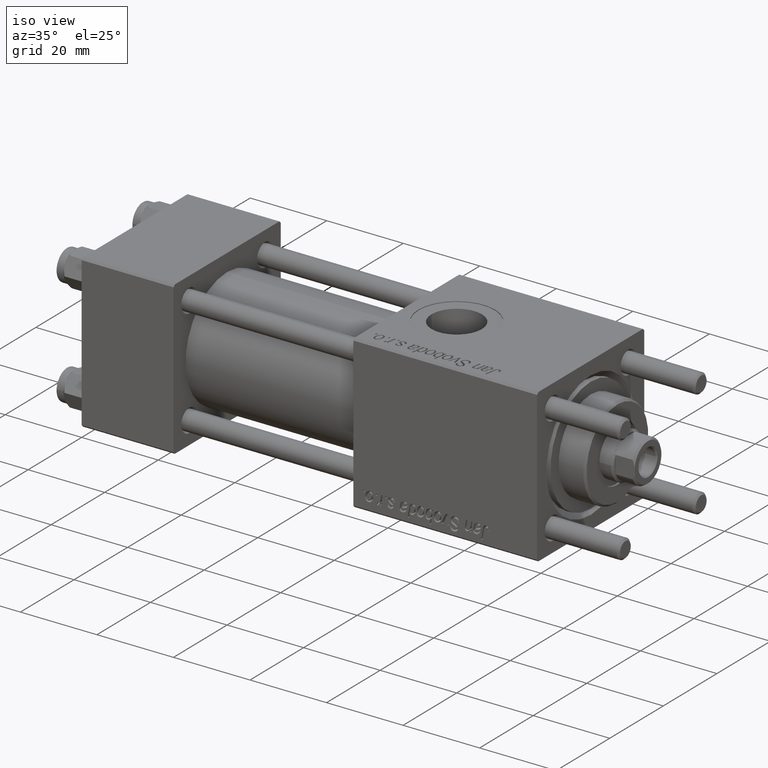
[diagram: clean part render]
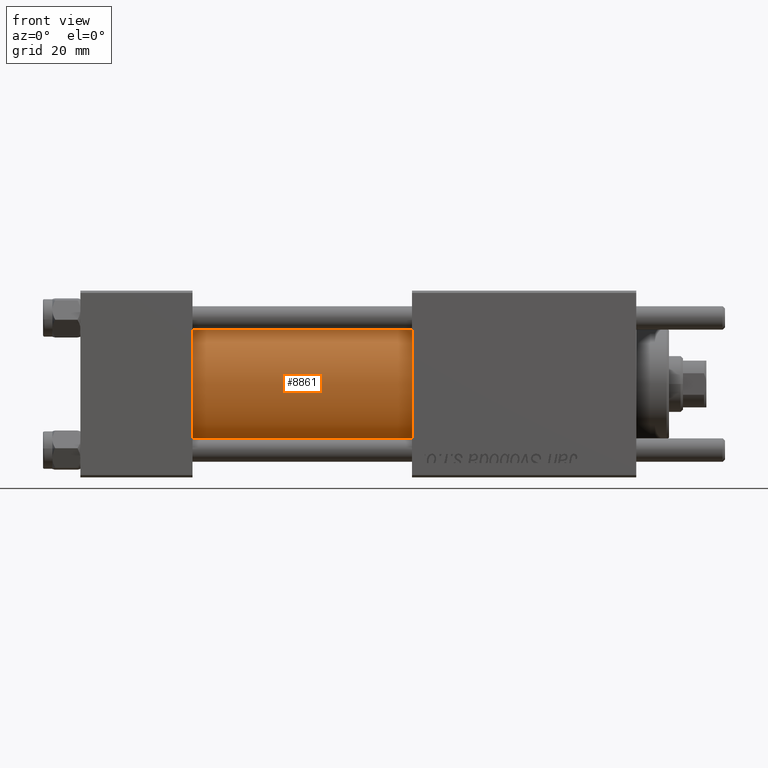
[diagram: tour spotlight — one face highlighted and labeled with its STEP entity id]
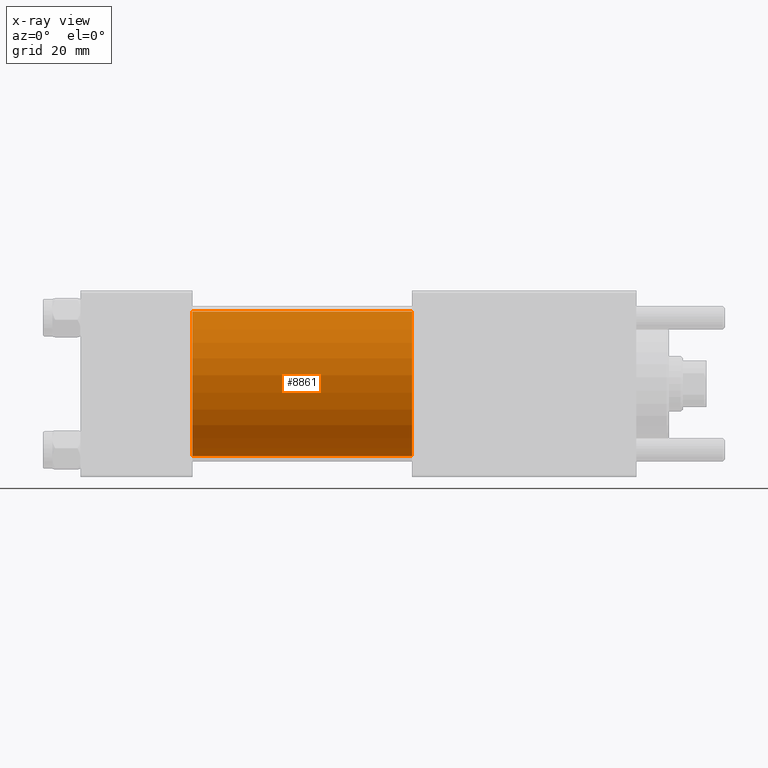
[diagram: x-ray of the same camera — body ghosted, this tour face saturated]
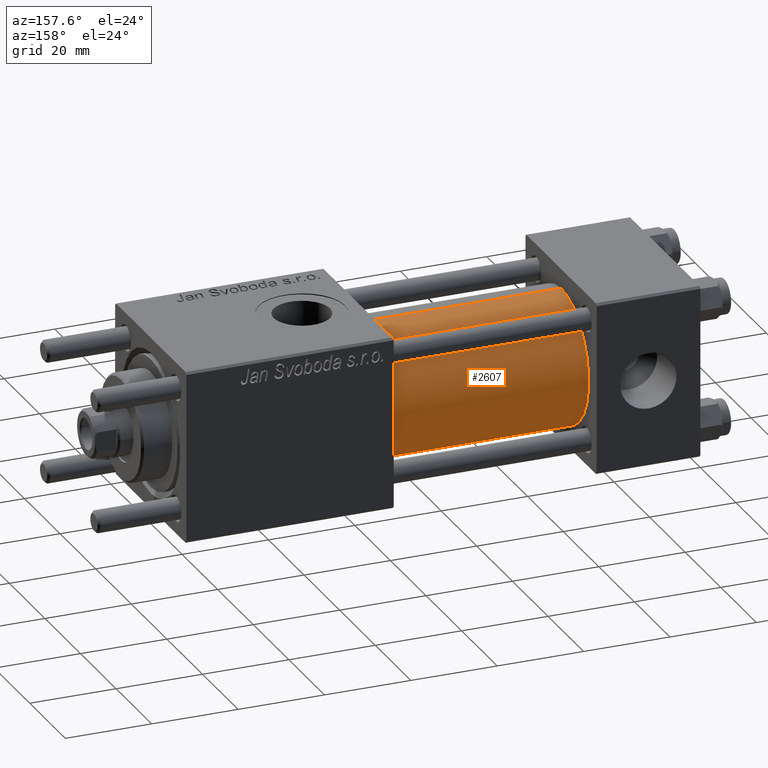
[diagram: tour spotlight — one face highlighted and labeled with its STEP entity id]
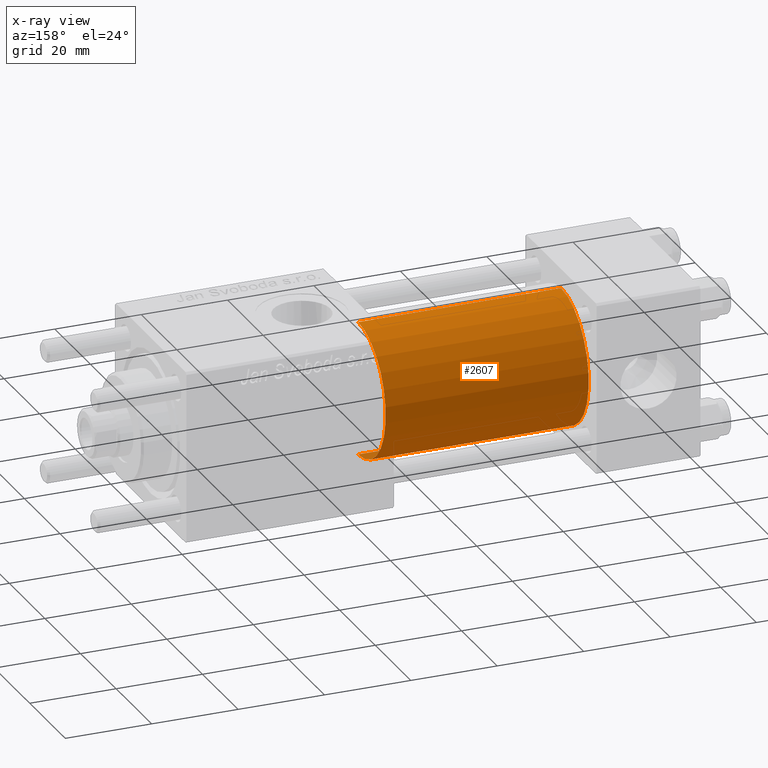
[diagram: x-ray of the same camera — body ghosted, this tour face saturated]
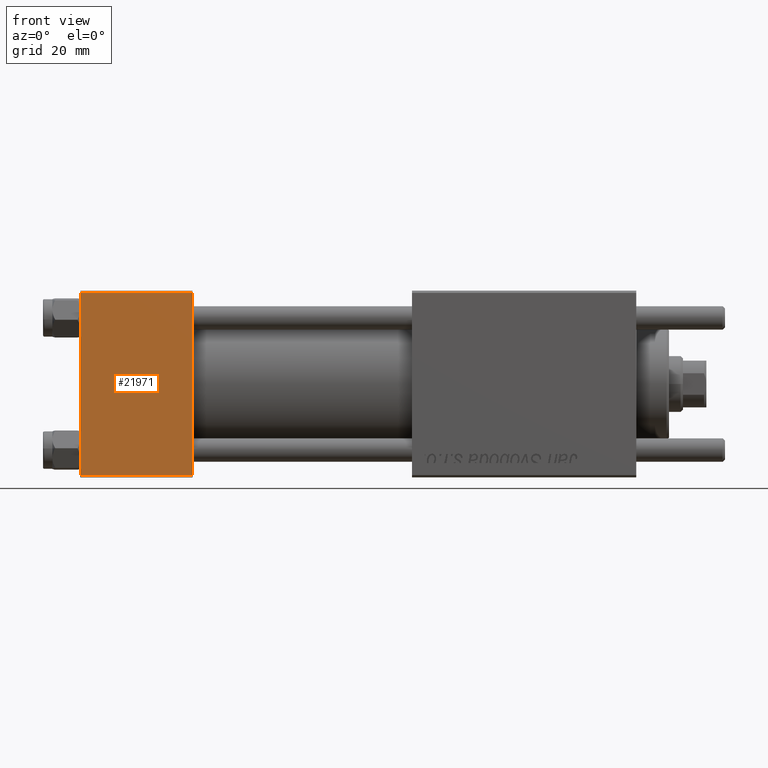
[diagram: tour spotlight — one face highlighted and labeled with its STEP entity id]
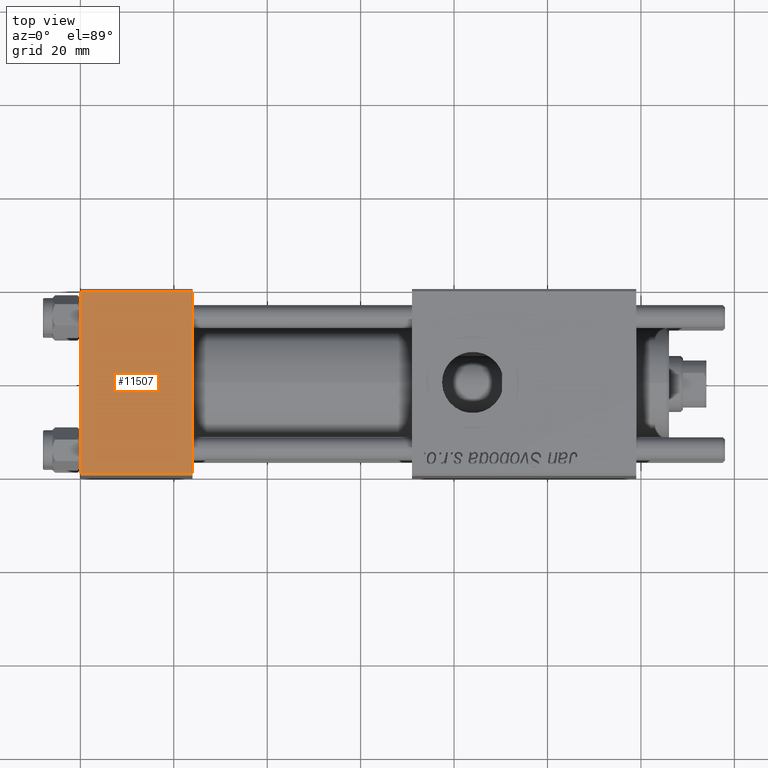
[diagram: tour spotlight — one face highlighted and labeled with its STEP entity id]
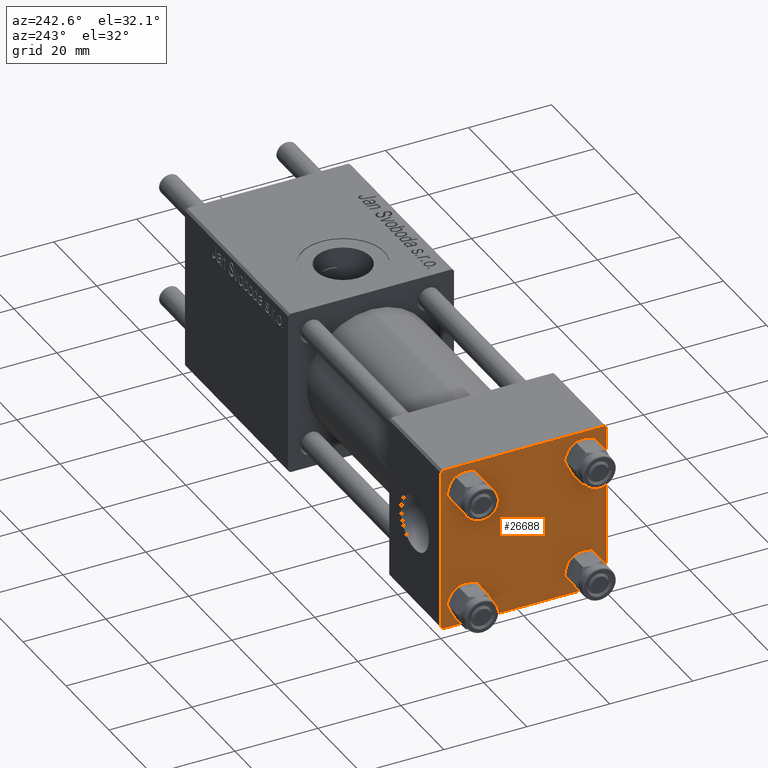
[diagram: tour spotlight — one face highlighted and labeled with its STEP entity id]
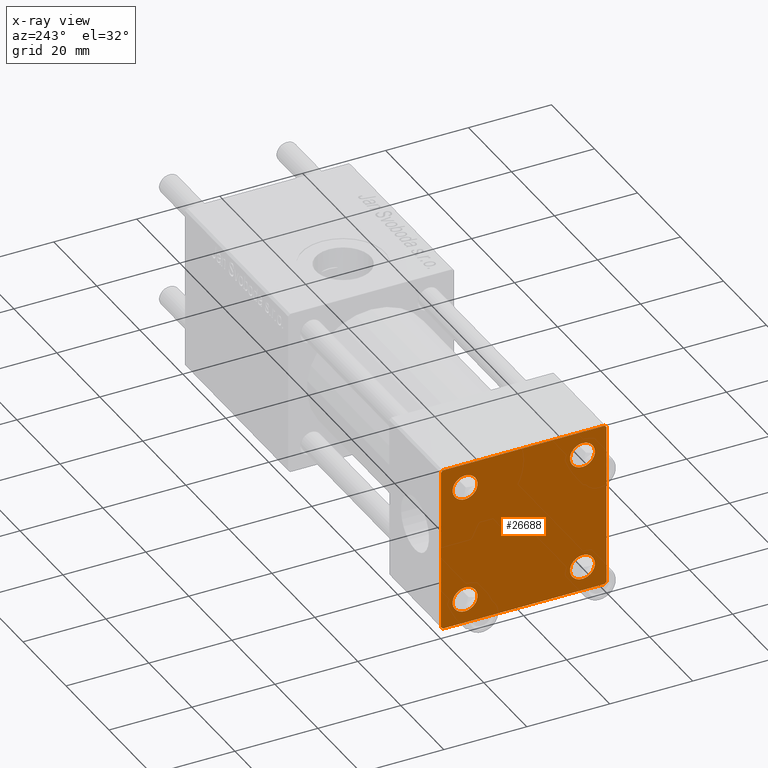
[diagram: x-ray of the same camera — body ghosted, this tour face saturated]
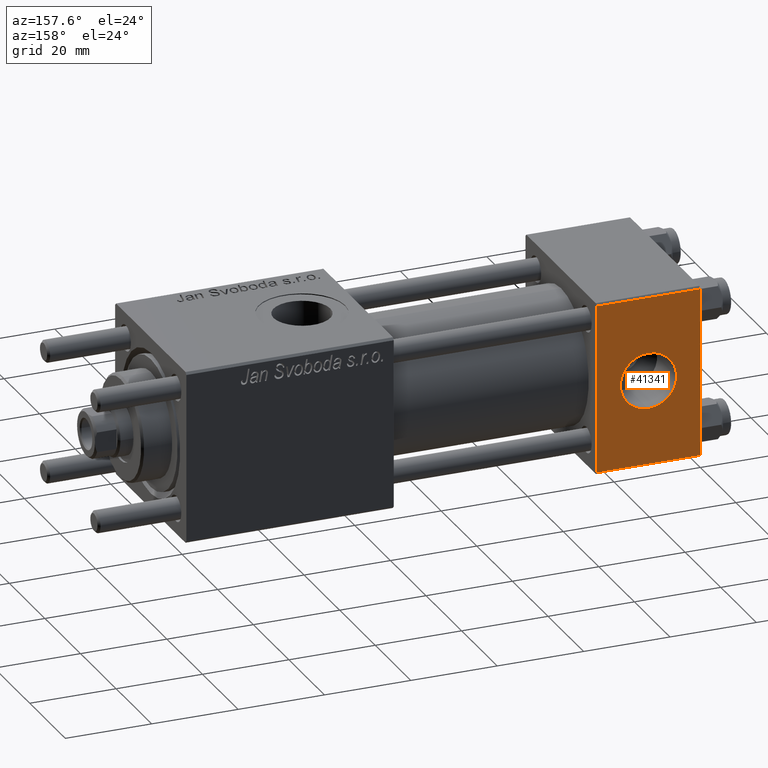
[diagram: tour spotlight — one face highlighted and labeled with its STEP entity id]
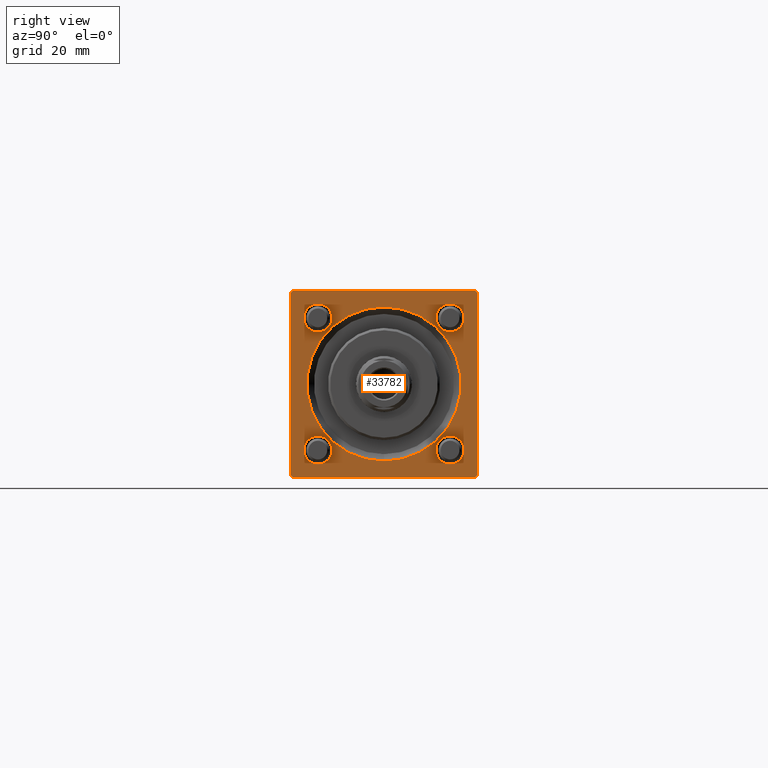
[diagram: tour spotlight — one face highlighted and labeled with its STEP entity id]
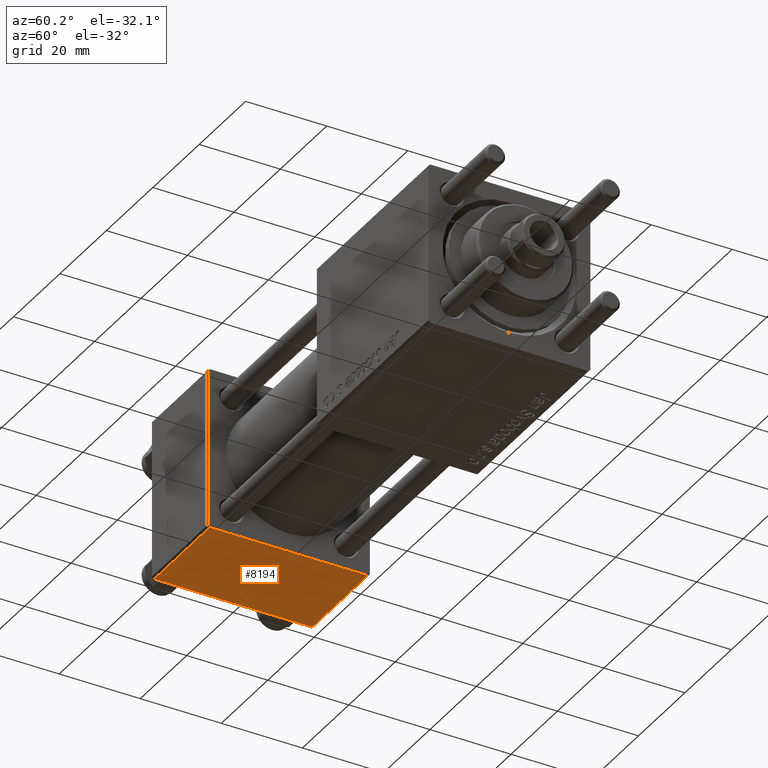
[diagram: tour spotlight — one face highlighted and labeled with its STEP entity id]
A machine part: a face-by-face anatomy tour. The part has 1156 B-rep faces; the first image is the clean iso view, then the 8 largest visible faces are spotlighted one at a time (largest first), each with its STEP entity span.

Face 1 — front view, entity #8861. An x-ray twin of the same camera follows (body ghosted, this face saturated) — the face is partly hidden behind the body. In plain terms, the highlighted cylindrical surface (partial cylindrical patch) has radius 15.5 mm, axis along (-1, -0, -0).
Definition (entity closure, byte-faithful):
#461 = CARTESIAN_POINT ( 'NONE',  ( 71.00000000000001421, -7.038826752868131828E-16, -15.50000000000000000 ) ) ;
#2407 = DIRECTION ( 'NONE',  ( -1.000000000000000000, -0.000000000000000000, -0.000000000000000000 ) ) ;
#4283 = CARTESIAN_POINT ( 'NONE',  ( 71.00000000000001421, -2.602085213965210642E-15, 15.50000000000000000 ) ) ;
#6397 = CYLINDRICAL_SURFACE ( 'NONE', #38442, 15.50000000000000000 ) ;
#6959 = DIRECTION ( 'NONE',  ( 0.000000000000000000, 0.000000000000000000, 1.000000000000000000 ) ) ;
#7231 = DIRECTION ( 'NONE',  ( -1.000000000000000000, -0.000000000000000000, -0.000000000000000000 ) ) ;
#8861 = ADVANCED_FACE ( 'NONE', ( #33066 ), #6397, .T. ) ;
#12022 = ORIENTED_EDGE ( 'NONE', *, *, #26585, .T. ) ;
#15592 = CIRCLE ( 'NONE', #26537, 15.50000000000000000 ) ;
#17501 = DIRECTION ( 'NONE',  ( 0.000000000000000000, 0.000000000000000000, -1.000000000000000000 ) ) ;
#18921 = ORIENTED_EDGE ( 'NONE', *, *, #39131, .F. ) ;
#19982 = CARTESIAN_POINT ( 'NONE',  ( 24.00000000000000000, -7.038826752868131828E-16, -15.50000000000000000 ) ) ;
#23356 = LINE ( 'NONE', #46329, #30569 ) ;
#25511 = CARTESIAN_POINT ( 'NONE',  ( 71.00000000000001421, -2.602085213965210642E-15, 0.000000000000000000 ) ) ;
#26506 = LINE ( 'NONE', #31395, #55068 ) ;
#26537 = AXIS2_PLACEMENT_3D ( 'NONE', #38595, #39165, #42915 ) ;
#26585 = EDGE_CURVE ( 'NONE', #38244, #30032, #23356, .T. ) ;
#30032 = VERTEX_POINT ( 'NONE', #44324 ) ;
#30569 = VECTOR ( 'NONE', #2407, 1000.000000000000000 ) ;
#31395 = CARTESIAN_POINT ( 'NONE',  ( 71.00000000000001421, -7.038826752868131828E-16, -15.50000000000000000 ) ) ;
#33066 = FACE_OUTER_BOUND ( 'NONE', #52096, .T. ) ;
#33619 = CARTESIAN_POINT ( 'NONE',  ( 71.00000000000001421, -2.602085213965210642E-15, 0.000000000000000000 ) ) ;
#36275 = DIRECTION ( 'NONE',  ( -1.000000000000000000, -0.000000000000000000, -0.000000000000000000 ) ) ;
#38244 = VERTEX_POINT ( 'NONE', #4283 ) ;
#38442 = AXIS2_PLACEMENT_3D ( 'NONE', #33619, #7231, #6959 ) ;
#38595 = CARTESIAN_POINT ( 'NONE',  ( 24.00000000000000000, -2.602085213965210642E-15, 0.000000000000000000 ) ) ;
#39131 = EDGE_CURVE ( 'NONE', #38244, #41174, #51892, .T. ) ;
#39165 = DIRECTION ( 'NONE',  ( 1.000000000000000000, 0.000000000000000000, 0.000000000000000000 ) ) ;
#39291 = DIRECTION ( 'NONE',  ( 1.000000000000000000, 0.000000000000000000, 0.000000000000000000 ) ) ;
#41174 = VERTEX_POINT ( 'NONE', #461 ) ;
#42915 = DIRECTION ( 'NONE',  ( 0.000000000000000000, 0.000000000000000000, 1.000000000000000000 ) ) ;
#44324 = CARTESIAN_POINT ( 'NONE',  ( 24.00000000000000000, -2.602085213965210642E-15, 15.50000000000000000 ) ) ;
#44587 = AXIS2_PLACEMENT_3D ( 'NONE', #25511, #39291, #17501 ) ;
#46329 = CARTESIAN_POINT ( 'NONE',  ( 71.00000000000001421, -2.602085213965210642E-15, 15.50000000000000000 ) ) ;
#48857 = EDGE_CURVE ( 'NONE', #30032, #51841, #15592, .T. ) ;
#51841 = VERTEX_POINT ( 'NONE', #19982 ) ;
#51892 = CIRCLE ( 'NONE', #44587, 15.50000000000000000 ) ;
#52096 = EDGE_LOOP ( 'NONE', ( #56246, #18921, #12022, #52205 ) ) ;
#52205 = ORIENTED_EDGE ( 'NONE', *, *, #48857, .T. ) ;
#55068 = VECTOR ( 'NONE', #36275, 1000.000000000000000 ) ;
#55980 = EDGE_CURVE ( 'NONE', #41174, #51841, #26506, .T. ) ;
#56246 = ORIENTED_EDGE ( 'NONE', *, *, #55980, .F. ) ;

Face 2 — auxiliary view, entity #2607. An x-ray twin of the same camera follows (body ghosted, this face saturated) — the face is partly hidden behind the body. In plain terms, the highlighted cylindrical surface (partial cylindrical patch) has radius 15.5 mm, axis along (-1, -0, -0).
Definition (entity closure, byte-faithful):
#461 = CARTESIAN_POINT ( 'NONE',  ( 71.00000000000001421, -7.038826752868131828E-16, -15.50000000000000000 ) ) ;
#2221 = AXIS2_PLACEMENT_3D ( 'NONE', #25719, #7680, #38924 ) ;
#2407 = DIRECTION ( 'NONE',  ( -1.000000000000000000, -0.000000000000000000, -0.000000000000000000 ) ) ;
#2607 = ADVANCED_FACE ( 'NONE', ( #44604 ), #26776, .T. ) ;
#2902 = DIRECTION ( 'NONE',  ( 0.000000000000000000, 0.000000000000000000, -1.000000000000000000 ) ) ;
#4283 = CARTESIAN_POINT ( 'NONE',  ( 71.00000000000001421, -2.602085213965210642E-15, 15.50000000000000000 ) ) ;
#5266 = CARTESIAN_POINT ( 'NONE',  ( 71.00000000000001421, -2.602085213965210642E-15, 0.000000000000000000 ) ) ;
#7680 = DIRECTION ( 'NONE',  ( 1.000000000000000000, 0.000000000000000000, 0.000000000000000000 ) ) ;
#11199 = AXIS2_PLACEMENT_3D ( 'NONE', #33037, #50562, #2902 ) ;
#15474 = ORIENTED_EDGE ( 'NONE', *, *, #27718, .T. ) ;
#18066 = AXIS2_PLACEMENT_3D ( 'NONE', #5266, #48910, #39698 ) ;
#19982 = CARTESIAN_POINT ( 'NONE',  ( 24.00000000000000000, -7.038826752868131828E-16, -15.50000000000000000 ) ) ;
#20801 = EDGE_CURVE ( 'NONE', #41174, #38244, #46929, .T. ) ;
#21449 = CIRCLE ( 'NONE', #2221, 15.50000000000000000 ) ;
#23356 = LINE ( 'NONE', #46329, #30569 ) ;
#25719 = CARTESIAN_POINT ( 'NONE',  ( 24.00000000000000000, -2.602085213965210642E-15, 0.000000000000000000 ) ) ;
#26506 = LINE ( 'NONE', #31395, #55068 ) ;
#26585 = EDGE_CURVE ( 'NONE', #38244, #30032, #23356, .T. ) ;
#26776 = CYLINDRICAL_SURFACE ( 'NONE', #18066, 15.50000000000000000 ) ;
#27718 = EDGE_CURVE ( 'NONE', #51841, #30032, #21449, .T. ) ;
#30032 = VERTEX_POINT ( 'NONE', #44324 ) ;
#30569 = VECTOR ( 'NONE', #2407, 1000.000000000000000 ) ;
#31395 = CARTESIAN_POINT ( 'NONE',  ( 71.00000000000001421, -7.038826752868131828E-16, -15.50000000000000000 ) ) ;
#33037 = CARTESIAN_POINT ( 'NONE',  ( 71.00000000000001421, -2.602085213965210642E-15, 0.000000000000000000 ) ) ;
#36275 = DIRECTION ( 'NONE',  ( -1.000000000000000000, -0.000000000000000000, -0.000000000000000000 ) ) ;
#38244 = VERTEX_POINT ( 'NONE', #4283 ) ;
#38924 = DIRECTION ( 'NONE',  ( 0.000000000000000000, 0.000000000000000000, 1.000000000000000000 ) ) ;
#39698 = DIRECTION ( 'NONE',  ( 0.000000000000000000, 0.000000000000000000, 1.000000000000000000 ) ) ;
#39846 = ORIENTED_EDGE ( 'NONE', *, *, #26585, .F. ) ;
#41174 = VERTEX_POINT ( 'NONE', #461 ) ;
#44324 = CARTESIAN_POINT ( 'NONE',  ( 24.00000000000000000, -2.602085213965210642E-15, 15.50000000000000000 ) ) ;
#44577 = ORIENTED_EDGE ( 'NONE', *, *, #55980, .T. ) ;
#44604 = FACE_OUTER_BOUND ( 'NONE', #56782, .T. ) ;
#46329 = CARTESIAN_POINT ( 'NONE',  ( 71.00000000000001421, -2.602085213965210642E-15, 15.50000000000000000 ) ) ;
#46929 = CIRCLE ( 'NONE', #11199, 15.50000000000000000 ) ;
#47116 = ORIENTED_EDGE ( 'NONE', *, *, #20801, .F. ) ;
#48910 = DIRECTION ( 'NONE',  ( -1.000000000000000000, -0.000000000000000000, -0.000000000000000000 ) ) ;
#50562 = DIRECTION ( 'NONE',  ( 1.000000000000000000, 0.000000000000000000, 0.000000000000000000 ) ) ;
#51841 = VERTEX_POINT ( 'NONE', #19982 ) ;
#55068 = VECTOR ( 'NONE', #36275, 1000.000000000000000 ) ;
#55980 = EDGE_CURVE ( 'NONE', #41174, #51841, #26506, .T. ) ;
#56782 = EDGE_LOOP ( 'NONE', ( #47116, #44577, #15474, #39846 ) ) ;

Face 3 — front view, entity #21971. In plain terms, the highlighted planar face has unit normal (0, 1, 0).
Definition (entity closure, byte-faithful):
#132 = VECTOR ( 'NONE', #16307, 1000.000000000000000 ) ;
#3467 = DIRECTION ( 'NONE',  ( -1.000000000000000000, 0.000000000000000000, 0.000000000000000000 ) ) ;
#5698 = AXIS2_PLACEMENT_3D ( 'NONE', #13399, #26855, #56702 ) ;
#6400 = EDGE_CURVE ( 'NONE', #31837, #10886, #40839, .T. ) ;
#10119 = CARTESIAN_POINT ( 'NONE',  ( 24.00000000000000000, -20.00000000000000355, 19.99999999999998934 ) ) ;
#10714 = CARTESIAN_POINT ( 'NONE',  ( 0.000000000000000000, -20.00000000000000355, 19.99999999999998934 ) ) ;
#10886 = VERTEX_POINT ( 'NONE', #41429 ) ;
#11473 = VECTOR ( 'NONE', #51101, 1000.000000000000000 ) ;
#13399 = CARTESIAN_POINT ( 'NONE',  ( 24.00000000000000000, -20.00000000000000355, 19.99999999999998934 ) ) ;
#15880 = CARTESIAN_POINT ( 'NONE',  ( 24.00000000000000000, -20.00000000000000355, 19.49999999999998224 ) ) ;
#16307 = DIRECTION ( 'NONE',  ( 0.000000000000000000, 8.673617379884036705E-17, -1.000000000000000000 ) ) ;
#18522 = VERTEX_POINT ( 'NONE', #15880 ) ;
#19843 = EDGE_CURVE ( 'NONE', #18522, #49567, #49430, .T. ) ;
#21971 = ADVANCED_FACE ( 'NONE', ( #39192 ), #50033, .F. ) ;
#26149 = CARTESIAN_POINT ( 'NONE',  ( 0.000000000000000000, -20.00000000000000355, 19.49999999999998224 ) ) ;
#26855 = DIRECTION ( 'NONE',  ( -0.000000000000000000, 1.000000000000000000, 8.673617379884036705E-17 ) ) ;
#27906 = DIRECTION ( 'NONE',  ( 0.000000000000000000, 8.673617379884036705E-17, -1.000000000000000000 ) ) ;
#29567 = LINE ( 'NONE', #47117, #40008 ) ;
#31837 = VERTEX_POINT ( 'NONE', #26149 ) ;
#35799 = ORIENTED_EDGE ( 'NONE', *, *, #41669, .T. ) ;
#35919 = EDGE_CURVE ( 'NONE', #10886, #49567, #46253, .T. ) ;
#36999 = ORIENTED_EDGE ( 'NONE', *, *, #35919, .T. ) ;
#37482 = VECTOR ( 'NONE', #27906, 1000.000000000000000 ) ;
#39192 = FACE_OUTER_BOUND ( 'NONE', #41380, .T. ) ;
#40008 = VECTOR ( 'NONE', #3467, 1000.000000000000000 ) ;
#40839 = LINE ( 'NONE', #10714, #37482 ) ;
#41380 = EDGE_LOOP ( 'NONE', ( #46026, #36999, #48671, #35799 ) ) ;
#41429 = CARTESIAN_POINT ( 'NONE',  ( 0.000000000000000000, -20.00000000000000000, -19.49999999999999645 ) ) ;
#41669 = EDGE_CURVE ( 'NONE', #18522, #31837, #29567, .T. ) ;
#46026 = ORIENTED_EDGE ( 'NONE', *, *, #6400, .T. ) ;
#46253 = LINE ( 'NONE', #50829, #11473 ) ;
#47117 = CARTESIAN_POINT ( 'NONE',  ( 24.00000000000000000, -20.00000000000000355, 19.49999999999998224 ) ) ;
#48671 = ORIENTED_EDGE ( 'NONE', *, *, #19843, .F. ) ;
#49430 = LINE ( 'NONE', #10119, #132 ) ;
#49567 = VERTEX_POINT ( 'NONE', #53036 ) ;
#50033 = PLANE ( 'NONE',  #5698 ) ;
#50829 = CARTESIAN_POINT ( 'NONE',  ( 24.00000000000000000, -20.00000000000000000, -19.49999999999999645 ) ) ;
#51101 = DIRECTION ( 'NONE',  ( 1.000000000000000000, 0.000000000000000000, 0.000000000000000000 ) ) ;
#53036 = CARTESIAN_POINT ( 'NONE',  ( 24.00000000000000000, -20.00000000000000000, -19.49999999999999645 ) ) ;
#56702 = DIRECTION ( 'NONE',  ( 0.000000000000000000, -8.673617379884036705E-17, 1.000000000000000000 ) ) ;

Face 4 — top view, entity #11507. In plain terms, the highlighted planar face has unit normal (0, 0, -1).
Definition (entity closure, byte-faithful):
#1237 = DIRECTION ( 'NONE',  ( 0.000000000000000000, 1.000000000000000000, 2.602085213965210149E-16 ) ) ;
#6794 = ORIENTED_EDGE ( 'NONE', *, *, #18170, .T. ) ;
#8576 = CARTESIAN_POINT ( 'NONE',  ( 0.000000000000000000, -19.49999999999999289, 19.99999999999998934 ) ) ;
#10105 = AXIS2_PLACEMENT_3D ( 'NONE', #10419, #50288, #1237 ) ;
#10419 = CARTESIAN_POINT ( 'NONE',  ( 24.00000000000000000, 20.00000000000000000, 20.00000000000000000 ) ) ;
#11507 = ADVANCED_FACE ( 'NONE', ( #49731 ), #19291, .F. ) ;
#16745 = EDGE_CURVE ( 'NONE', #27963, #32780, #31584, .T. ) ;
#18170 = EDGE_CURVE ( 'NONE', #24691, #27963, #19111, .T. ) ;
#19111 = LINE ( 'NONE', #31173, #49584 ) ;
#19291 = PLANE ( 'NONE',  #10105 ) ;
#20536 = EDGE_LOOP ( 'NONE', ( #38397, #55221, #32028, #6794 ) ) ;
#22103 = VERTEX_POINT ( 'NONE', #55718 ) ;
#24601 = VECTOR ( 'NONE', #47817, 1000.000000000000000 ) ;
#24691 = VERTEX_POINT ( 'NONE', #39060 ) ;
#27237 = CARTESIAN_POINT ( 'NONE',  ( 24.00000000000000000, 20.00000000000000000, 20.00000000000000000 ) ) ;
#27963 = VERTEX_POINT ( 'NONE', #50692 ) ;
#28075 = LINE ( 'NONE', #27237, #33873 ) ;
#31173 = CARTESIAN_POINT ( 'NONE',  ( 0.000000000000000000, 19.50000000000000000, 20.00000000000000000 ) ) ;
#31584 = LINE ( 'NONE', #49393, #38522 ) ;
#32028 = ORIENTED_EDGE ( 'NONE', *, *, #48440, .F. ) ;
#32780 = VERTEX_POINT ( 'NONE', #8576 ) ;
#33873 = VECTOR ( 'NONE', #45061, 1000.000000000000000 ) ;
#34593 = CARTESIAN_POINT ( 'NONE',  ( 24.00000000000000000, -19.49999999999999289, 19.99999999999998934 ) ) ;
#38397 = ORIENTED_EDGE ( 'NONE', *, *, #16745, .T. ) ;
#38522 = VECTOR ( 'NONE', #49122, 1000.000000000000000 ) ;
#39060 = CARTESIAN_POINT ( 'NONE',  ( 24.00000000000000000, 19.50000000000000000, 20.00000000000000000 ) ) ;
#45061 = DIRECTION ( 'NONE',  ( 0.000000000000000000, -1.000000000000000000, -2.602085213965210149E-16 ) ) ;
#47817 = DIRECTION ( 'NONE',  ( 1.000000000000000000, 0.000000000000000000, 0.000000000000000000 ) ) ;
#48440 = EDGE_CURVE ( 'NONE', #24691, #22103, #28075, .T. ) ;
#49122 = DIRECTION ( 'NONE',  ( 0.000000000000000000, -1.000000000000000000, -2.602085213965210149E-16 ) ) ;
#49393 = CARTESIAN_POINT ( 'NONE',  ( 0.000000000000000000, 20.00000000000000000, 20.00000000000000000 ) ) ;
#49584 = VECTOR ( 'NONE', #49837, 1000.000000000000000 ) ;
#49731 = FACE_OUTER_BOUND ( 'NONE', #20536, .T. ) ;
#49762 = EDGE_CURVE ( 'NONE', #32780, #22103, #52399, .T. ) ;
#49837 = DIRECTION ( 'NONE',  ( -1.000000000000000000, 0.000000000000000000, 0.000000000000000000 ) ) ;
#50288 = DIRECTION ( 'NONE',  ( 0.000000000000000000, 2.602085213965210149E-16, -1.000000000000000000 ) ) ;
#50692 = CARTESIAN_POINT ( 'NONE',  ( 0.000000000000000000, 19.50000000000000000, 20.00000000000000000 ) ) ;
#52399 = LINE ( 'NONE', #34593, #24601 ) ;
#55221 = ORIENTED_EDGE ( 'NONE', *, *, #49762, .T. ) ;
#55718 = CARTESIAN_POINT ( 'NONE',  ( 24.00000000000000000, -19.49999999999999289, 19.99999999999998934 ) ) ;

Face 5 — auxiliary view, entity #26688. An x-ray twin of the same camera follows (body ghosted, this face saturated) — the face is partly hidden behind the body. In plain terms, the highlighted planar face has unit normal (-1, 0, 0).
Definition (entity closure, byte-faithful):
#355 = CARTESIAN_POINT ( 'NONE',  ( 0.000000000000000000, 14.14999999999999858, -11.15000000000001812 ) ) ;
#635 = EDGE_CURVE ( 'NONE', #31837, #32780, #6785, .T. ) ;
#1056 = CARTESIAN_POINT ( 'NONE',  ( -0.000000000000000000, 19.75000000000013500, 19.74999999999986144 ) ) ;
#1214 = DIRECTION ( 'NONE',  ( 0.000000000000000000, 0.000000000000000000, 1.000000000000000000 ) ) ;
#2472 = DIRECTION ( 'NONE',  ( -0.000000000000000000, 0.7071067811865500152, 0.7071067811865451302 ) ) ;
#3984 = CARTESIAN_POINT ( 'NONE',  ( 0.000000000000000000, 20.00000000000000000, -19.50000000000002132 ) ) ;
#4069 = DIRECTION ( 'NONE',  ( -1.000000000000000000, 0.000000000000000000, -0.000000000000000000 ) ) ;
#4277 = VECTOR ( 'NONE', #13016, 1000.000000000000000 ) ;
#4379 = CARTESIAN_POINT ( 'NONE',  ( 0.000000000000000000, -14.14999999999999503, 14.15000000000000391 ) ) ;
#4623 = DIRECTION ( 'NONE',  ( 0.000000000000000000, -1.000000000000000000, 1.734723475976807094E-16 ) ) ;
#5155 = AXIS2_PLACEMENT_3D ( 'NONE', #5793, #36764, #1214 ) ;
#5228 = CARTESIAN_POINT ( 'NONE',  ( 0.000000000000000000, 0.000000000000000000, 0.000000000000000000 ) ) ;
#5462 = VECTOR ( 'NONE', #31285, 1000.000000000000000 ) ;
#5656 = CARTESIAN_POINT ( 'NONE',  ( 0.000000000000000000, 14.14999999999999858, 11.15000000000001990 ) ) ;
#5793 = CARTESIAN_POINT ( 'NONE',  ( 0.000000000000000000, -14.14999999999999503, -14.15000000000000391 ) ) ;
#6306 = DIRECTION ( 'NONE',  ( 0.000000000000000000, 0.000000000000000000, 1.000000000000000000 ) ) ;
#6400 = EDGE_CURVE ( 'NONE', #31837, #10886, #40839, .T. ) ;
#6785 = LINE ( 'NONE', #7335, #19686 ) ;
#7335 = CARTESIAN_POINT ( 'NONE',  ( -0.000000000000000000, -19.74999999999992539, 19.75000000000006395 ) ) ;
#7488 = AXIS2_PLACEMENT_3D ( 'NONE', #47450, #52890, #26753 ) ;
#7794 = VERTEX_POINT ( 'NONE', #30666 ) ;
#7833 = FACE_BOUND ( 'NONE', #31700, .T. ) ;
#8340 = EDGE_LOOP ( 'NONE', ( #53701, #8990 ) ) ;
#8576 = CARTESIAN_POINT ( 'NONE',  ( 0.000000000000000000, -19.49999999999999289, 19.99999999999998934 ) ) ;
#8990 = ORIENTED_EDGE ( 'NONE', *, *, #38994, .T. ) ;
#9542 = CARTESIAN_POINT ( 'NONE',  ( 0.000000000000000000, 14.14999999999999858, -17.14999999999998437 ) ) ;
#10714 = CARTESIAN_POINT ( 'NONE',  ( 0.000000000000000000, -20.00000000000000355, 19.99999999999998934 ) ) ;
#10886 = VERTEX_POINT ( 'NONE', #41429 ) ;
#11116 = EDGE_LOOP ( 'NONE', ( #14234, #33122 ) ) ;
#11951 = CARTESIAN_POINT ( 'NONE',  ( 0.000000000000000000, -14.14999999999999503, 14.15000000000000391 ) ) ;
#12939 = CARTESIAN_POINT ( 'NONE',  ( -0.000000000000000000, 19.74999999999986855, -19.75000000000014211 ) ) ;
#13016 = DIRECTION ( 'NONE',  ( 0.000000000000000000, 0.000000000000000000, -1.000000000000000000 ) ) ;
#13639 = AXIS2_PLACEMENT_3D ( 'NONE', #4379, #40454, #6306 ) ;
#14234 = ORIENTED_EDGE ( 'NONE', *, *, #42067, .T. ) ;
#16745 = EDGE_CURVE ( 'NONE', #27963, #32780, #31584, .T. ) ;
#16868 = AXIS2_PLACEMENT_3D ( 'NONE', #36838, #27929, #37673 ) ;
#16948 = ORIENTED_EDGE ( 'NONE', *, *, #6400, .F. ) ;
#17569 = EDGE_LOOP ( 'NONE', ( #54712, #20148 ) ) ;
#17883 = VERTEX_POINT ( 'NONE', #3984 ) ;
#18954 = CARTESIAN_POINT ( 'NONE',  ( 0.000000000000000000, -14.14999999999999503, 11.15000000000002345 ) ) ;
#19686 = VECTOR ( 'NONE', #2472, 1000.000000000000114 ) ;
#19934 = DIRECTION ( 'NONE',  ( 0.000000000000000000, 0.000000000000000000, 1.000000000000000000 ) ) ;
#20148 = ORIENTED_EDGE ( 'NONE', *, *, #20576, .T. ) ;
#20576 = EDGE_CURVE ( 'NONE', #39435, #33728, #55189, .T. ) ;
#21017 = FACE_BOUND ( 'NONE', #17569, .T. ) ;
#21330 = VERTEX_POINT ( 'NONE', #45783 ) ;
#21603 = ORIENTED_EDGE ( 'NONE', *, *, #52825, .T. ) ;
#22683 = LINE ( 'NONE', #12939, #5462 ) ;
#22728 = EDGE_CURVE ( 'NONE', #31057, #31082, #47897, .T. ) ;
#24200 = CIRCLE ( 'NONE', #16868, 2.999999999999983569 ) ;
#24570 = VECTOR ( 'NONE', #44390, 1000.000000000000000 ) ;
#25296 = CARTESIAN_POINT ( 'NONE',  ( 0.000000000000000000, 19.50000000000000711, -20.00000000000000711 ) ) ;
#25307 = FACE_BOUND ( 'NONE', #8340, .T. ) ;
#25498 = AXIS2_PLACEMENT_3D ( 'NONE', #27964, #54384, #41180 ) ;
#25611 = CARTESIAN_POINT ( 'NONE',  ( 0.000000000000000000, 20.00000000000000000, 20.00000000000000000 ) ) ;
#26149 = CARTESIAN_POINT ( 'NONE',  ( 0.000000000000000000, -20.00000000000000355, 19.49999999999998224 ) ) ;
#26412 = LINE ( 'NONE', #31307, #33794 ) ;
#26688 = ADVANCED_FACE ( 'NONE', ( #7833, #25307, #42832, #21017, #38509 ), #53445, .T. ) ;
#26753 = DIRECTION ( 'NONE',  ( 0.000000000000000000, 0.000000000000000000, 1.000000000000000000 ) ) ;
#26849 = LINE ( 'NONE', #31154, #24570 ) ;
#26900 = AXIS2_PLACEMENT_3D ( 'NONE', #5228, #4069, #48286 ) ;
#27450 = VERTEX_POINT ( 'NONE', #25296 ) ;
#27630 = ORIENTED_EDGE ( 'NONE', *, *, #635, .T. ) ;
#27903 = VERTEX_POINT ( 'NONE', #40931 ) ;
#27906 = DIRECTION ( 'NONE',  ( 0.000000000000000000, 8.673617379884036705E-17, -1.000000000000000000 ) ) ;
#27929 = DIRECTION ( 'NONE',  ( 1.000000000000000000, 0.000000000000000000, 0.000000000000000000 ) ) ;
#27963 = VERTEX_POINT ( 'NONE', #50692 ) ;
#27964 = CARTESIAN_POINT ( 'NONE',  ( 0.000000000000000000, -14.14999999999999503, -14.15000000000000391 ) ) ;
#28178 = EDGE_CURVE ( 'NONE', #33728, #39435, #24200, .T. ) ;
#30007 = CARTESIAN_POINT ( 'NONE',  ( 0.000000000000000000, 14.14999999999999858, 17.14999999999998437 ) ) ;
#30260 = ORIENTED_EDGE ( 'NONE', *, *, #56037, .T. ) ;
#30666 = CARTESIAN_POINT ( 'NONE',  ( 0.000000000000000000, -14.14999999999999503, -11.15000000000000036 ) ) ;
#31057 = VERTEX_POINT ( 'NONE', #9542 ) ;
#31069 = ORIENTED_EDGE ( 'NONE', *, *, #49244, .T. ) ;
#31082 = VERTEX_POINT ( 'NONE', #355 ) ;
#31154 = CARTESIAN_POINT ( 'NONE',  ( 0.000000000000000000, -19.75000000000020961, -19.74999999999979394 ) ) ;
#31171 = CARTESIAN_POINT ( 'NONE',  ( 0.000000000000000000, 14.14999999999999858, -14.15000000000000036 ) ) ;
#31285 = DIRECTION ( 'NONE',  ( -0.000000000000000000, -0.7071067811865524577, -0.7071067811865426878 ) ) ;
#31307 = CARTESIAN_POINT ( 'NONE',  ( 0.000000000000000000, 20.00000000000000000, -20.00000000000000711 ) ) ;
#31584 = LINE ( 'NONE', #49393, #38522 ) ;
#31700 = EDGE_LOOP ( 'NONE', ( #31069, #43923 ) ) ;
#31837 = VERTEX_POINT ( 'NONE', #26149 ) ;
#32568 = ORIENTED_EDGE ( 'NONE', *, *, #41416, .T. ) ;
#32780 = VERTEX_POINT ( 'NONE', #8576 ) ;
#33122 = ORIENTED_EDGE ( 'NONE', *, *, #22728, .T. ) ;
#33347 = VERTEX_POINT ( 'NONE', #18954 ) ;
#33728 = VERTEX_POINT ( 'NONE', #30007 ) ;
#33794 = VECTOR ( 'NONE', #4623, 1000.000000000000000 ) ;
#34617 = AXIS2_PLACEMENT_3D ( 'NONE', #45796, #46922, #19934 ) ;
#34819 = ORIENTED_EDGE ( 'NONE', *, *, #44426, .T. ) ;
#36764 = DIRECTION ( 'NONE',  ( 1.000000000000000000, 0.000000000000000000, 0.000000000000000000 ) ) ;
#36838 = CARTESIAN_POINT ( 'NONE',  ( 0.000000000000000000, 14.14999999999999858, 14.15000000000000036 ) ) ;
#37423 = ORIENTED_EDGE ( 'NONE', *, *, #45000, .T. ) ;
#37482 = VECTOR ( 'NONE', #27906, 1000.000000000000000 ) ;
#37673 = DIRECTION ( 'NONE',  ( 0.000000000000000000, 0.000000000000000000, 1.000000000000000000 ) ) ;
#37711 = CARTESIAN_POINT ( 'NONE',  ( 0.000000000000000000, -19.50000000000000711, -20.00000000000000000 ) ) ;
#38160 = VERTEX_POINT ( 'NONE', #55121 ) ;
#38509 = FACE_OUTER_BOUND ( 'NONE', #48966, .T. ) ;
#38522 = VECTOR ( 'NONE', #49122, 1000.000000000000000 ) ;
#38994 = EDGE_CURVE ( 'NONE', #38160, #7794, #48216, .T. ) ;
#39196 = DIRECTION ( 'NONE',  ( 0.000000000000000000, 0.7071067811865425767, -0.7071067811865525687 ) ) ;
#39435 = VERTEX_POINT ( 'NONE', #5656 ) ;
#40219 = EDGE_CURVE ( 'NONE', #33347, #21330, #47316, .T. ) ;
#40354 = DIRECTION ( 'NONE',  ( 1.000000000000000000, 0.000000000000000000, 0.000000000000000000 ) ) ;
#40454 = DIRECTION ( 'NONE',  ( 1.000000000000000000, 0.000000000000000000, 0.000000000000000000 ) ) ;
#40839 = LINE ( 'NONE', #10714, #37482 ) ;
#40931 = CARTESIAN_POINT ( 'NONE',  ( 0.000000000000000000, 20.00000000000000000, 19.49999999999999289 ) ) ;
#41144 = CIRCLE ( 'NONE', #25498, 3.000000000000004441 ) ;
#41180 = DIRECTION ( 'NONE',  ( 0.000000000000000000, 0.000000000000000000, 1.000000000000000000 ) ) ;
#41416 = EDGE_CURVE ( 'NONE', #27903, #17883, #47462, .T. ) ;
#41429 = CARTESIAN_POINT ( 'NONE',  ( 0.000000000000000000, -20.00000000000000000, -19.49999999999999645 ) ) ;
#42067 = EDGE_CURVE ( 'NONE', #31082, #31057, #48411, .T. ) ;
#42832 = FACE_BOUND ( 'NONE', #11116, .T. ) ;
#42913 = DIRECTION ( 'NONE',  ( 0.000000000000000000, 0.000000000000000000, 1.000000000000000000 ) ) ;
#43860 = VERTEX_POINT ( 'NONE', #37711 ) ;
#43923 = ORIENTED_EDGE ( 'NONE', *, *, #40219, .T. ) ;
#44390 = DIRECTION ( 'NONE',  ( 0.000000000000000000, -0.7071067811865401342, 0.7071067811865549002 ) ) ;
#44426 = EDGE_CURVE ( 'NONE', #43860, #10886, #26849, .T. ) ;
#45000 = EDGE_CURVE ( 'NONE', #27450, #43860, #26412, .T. ) ;
#45783 = CARTESIAN_POINT ( 'NONE',  ( 0.000000000000000000, -14.14999999999999503, 17.14999999999998792 ) ) ;
#45796 = CARTESIAN_POINT ( 'NONE',  ( 0.000000000000000000, 14.14999999999999858, -14.15000000000000036 ) ) ;
#46922 = DIRECTION ( 'NONE',  ( 1.000000000000000000, 0.000000000000000000, 0.000000000000000000 ) ) ;
#47316 = CIRCLE ( 'NONE', #48259, 2.999999999999983569 ) ;
#47450 = CARTESIAN_POINT ( 'NONE',  ( 0.000000000000000000, 14.14999999999999858, 14.15000000000000036 ) ) ;
#47462 = LINE ( 'NONE', #25611, #4277 ) ;
#47897 = CIRCLE ( 'NONE', #56108, 2.999999999999983569 ) ;
#48216 = CIRCLE ( 'NONE', #5155, 3.000000000000004441 ) ;
#48259 = AXIS2_PLACEMENT_3D ( 'NONE', #11951, #56389, #42913 ) ;
#48286 = DIRECTION ( 'NONE',  ( -0.000000000000000000, 0.000000000000000000, 1.000000000000000000 ) ) ;
#48411 = CIRCLE ( 'NONE', #34617, 2.999999999999983569 ) ;
#48966 = EDGE_LOOP ( 'NONE', ( #32568, #21603, #37423, #34819, #16948, #27630, #52586, #30260 ) ) ;
#49122 = DIRECTION ( 'NONE',  ( 0.000000000000000000, -1.000000000000000000, -2.602085213965210149E-16 ) ) ;
#49244 = EDGE_CURVE ( 'NONE', #21330, #33347, #54861, .T. ) ;
#49393 = CARTESIAN_POINT ( 'NONE',  ( 0.000000000000000000, 20.00000000000000000, 20.00000000000000000 ) ) ;
#50007 = EDGE_CURVE ( 'NONE', #7794, #38160, #41144, .T. ) ;
#50491 = VECTOR ( 'NONE', #39196, 999.9999999999998863 ) ;
#50692 = CARTESIAN_POINT ( 'NONE',  ( 0.000000000000000000, 19.50000000000000000, 20.00000000000000000 ) ) ;
#52421 = LINE ( 'NONE', #1056, #50491 ) ;
#52586 = ORIENTED_EDGE ( 'NONE', *, *, #16745, .F. ) ;
#52825 = EDGE_CURVE ( 'NONE', #17883, #27450, #22683, .T. ) ;
#52890 = DIRECTION ( 'NONE',  ( 1.000000000000000000, 0.000000000000000000, 0.000000000000000000 ) ) ;
#53288 = DIRECTION ( 'NONE',  ( 0.000000000000000000, 0.000000000000000000, 1.000000000000000000 ) ) ;
#53445 = PLANE ( 'NONE',  #26900 ) ;
#53701 = ORIENTED_EDGE ( 'NONE', *, *, #50007, .T. ) ;
#54384 = DIRECTION ( 'NONE',  ( 1.000000000000000000, 0.000000000000000000, 0.000000000000000000 ) ) ;
#54712 = ORIENTED_EDGE ( 'NONE', *, *, #28178, .T. ) ;
#54861 = CIRCLE ( 'NONE', #13639, 2.999999999999983569 ) ;
#55121 = CARTESIAN_POINT ( 'NONE',  ( 0.000000000000000000, -14.14999999999999503, -17.15000000000000924 ) ) ;
#55189 = CIRCLE ( 'NONE', #7488, 2.999999999999983569 ) ;
#56037 = EDGE_CURVE ( 'NONE', #27963, #27903, #52421, .T. ) ;
#56108 = AXIS2_PLACEMENT_3D ( 'NONE', #31171, #40354, #53288 ) ;
#56389 = DIRECTION ( 'NONE',  ( 1.000000000000000000, 0.000000000000000000, 0.000000000000000000 ) ) ;

Face 6 — auxiliary view, entity #41341. In plain terms, the highlighted planar face has unit normal (0, 1, 0).
Definition (entity closure, byte-faithful):
#1860 = EDGE_LOOP ( 'NONE', ( #50986, #45695 ) ) ;
#2292 = ORIENTED_EDGE ( 'NONE', *, *, #10169, .T. ) ;
#2674 = DIRECTION ( 'NONE',  ( 0.000000000000000000, 1.000000000000000000, 0.000000000000000000 ) ) ;
#3984 = CARTESIAN_POINT ( 'NONE',  ( 0.000000000000000000, 20.00000000000000000, -19.50000000000002132 ) ) ;
#4230 = CARTESIAN_POINT ( 'NONE',  ( 24.00000000000000000, 20.00000000000000000, -19.50000000000002132 ) ) ;
#4277 = VECTOR ( 'NONE', #13016, 1000.000000000000000 ) ;
#4986 = VERTEX_POINT ( 'NONE', #47766 ) ;
#5659 = CARTESIAN_POINT ( 'NONE',  ( 24.00000000000000000, 20.00000000000000000, -19.50000000000002132 ) ) ;
#6175 = PLANE ( 'NONE',  #7937 ) ;
#7007 = DIRECTION ( 'NONE',  ( 0.000000000000000000, 1.000000000000000000, 0.000000000000000000 ) ) ;
#7296 = CARTESIAN_POINT ( 'NONE',  ( 24.00000000000000000, 20.00000000000000000, 20.00000000000000000 ) ) ;
#7344 = VECTOR ( 'NONE', #56791, 1000.000000000000000 ) ;
#7937 = AXIS2_PLACEMENT_3D ( 'NONE', #7296, #54380, #24500 ) ;
#9686 = LINE ( 'NONE', #13707, #39769 ) ;
#10169 = EDGE_CURVE ( 'NONE', #4986, #29716, #47633, .T. ) ;
#11615 = FACE_OUTER_BOUND ( 'NONE', #29221, .T. ) ;
#12819 = ORIENTED_EDGE ( 'NONE', *, *, #20120, .T. ) ;
#13016 = DIRECTION ( 'NONE',  ( 0.000000000000000000, 0.000000000000000000, -1.000000000000000000 ) ) ;
#13418 = DIRECTION ( 'NONE',  ( 1.000000000000000000, 0.000000000000000000, 0.000000000000000000 ) ) ;
#13707 = CARTESIAN_POINT ( 'NONE',  ( 24.00000000000000000, 20.00000000000000000, 19.49999999999999289 ) ) ;
#14795 = FACE_BOUND ( 'NONE', #1860, .T. ) ;
#15408 = LINE ( 'NONE', #5659, #51504 ) ;
#17608 = CARTESIAN_POINT ( 'NONE',  ( 12.00000000000000000, 20.00000000000000000, 6.499999999999998224 ) ) ;
#17883 = VERTEX_POINT ( 'NONE', #3984 ) ;
#19909 = CARTESIAN_POINT ( 'NONE',  ( 12.00000000000000000, 20.00000000000000000, 0.000000000000000000 ) ) ;
#20120 = EDGE_CURVE ( 'NONE', #29716, #17883, #15408, .T. ) ;
#20586 = CIRCLE ( 'NONE', #42600, 6.499999999999998224 ) ;
#21775 = CARTESIAN_POINT ( 'NONE',  ( 24.00000000000000000, 20.00000000000000000, 20.00000000000000000 ) ) ;
#22879 = DIRECTION ( 'NONE',  ( -1.000000000000000000, 0.000000000000000000, 0.000000000000000000 ) ) ;
#23368 = DIRECTION ( 'NONE',  ( 0.000000000000000000, 0.000000000000000000, 1.000000000000000000 ) ) ;
#24456 = CARTESIAN_POINT ( 'NONE',  ( 12.00000000000000000, 20.00000000000000000, 0.000000000000000000 ) ) ;
#24500 = DIRECTION ( 'NONE',  ( 0.000000000000000000, -0.000000000000000000, 1.000000000000000000 ) ) ;
#25611 = CARTESIAN_POINT ( 'NONE',  ( 0.000000000000000000, 20.00000000000000000, 20.00000000000000000 ) ) ;
#25657 = EDGE_CURVE ( 'NONE', #42152, #48608, #35099, .T. ) ;
#27750 = EDGE_CURVE ( 'NONE', #27903, #4986, #9686, .T. ) ;
#27903 = VERTEX_POINT ( 'NONE', #40931 ) ;
#29221 = EDGE_LOOP ( 'NONE', ( #2292, #12819, #55587, #39518 ) ) ;
#29716 = VERTEX_POINT ( 'NONE', #4230 ) ;
#35099 = CIRCLE ( 'NONE', #53473, 6.499999999999998224 ) ;
#36264 = EDGE_CURVE ( 'NONE', #48608, #42152, #20586, .T. ) ;
#39518 = ORIENTED_EDGE ( 'NONE', *, *, #27750, .T. ) ;
#39769 = VECTOR ( 'NONE', #13418, 1000.000000000000000 ) ;
#40931 = CARTESIAN_POINT ( 'NONE',  ( 0.000000000000000000, 20.00000000000000000, 19.49999999999999289 ) ) ;
#41341 = ADVANCED_FACE ( 'NONE', ( #14795, #11615 ), #6175, .T. ) ;
#41416 = EDGE_CURVE ( 'NONE', #27903, #17883, #47462, .T. ) ;
#42152 = VERTEX_POINT ( 'NONE', #17608 ) ;
#42600 = AXIS2_PLACEMENT_3D ( 'NONE', #19909, #7007, #23368 ) ;
#45695 = ORIENTED_EDGE ( 'NONE', *, *, #36264, .F. ) ;
#47462 = LINE ( 'NONE', #25611, #4277 ) ;
#47633 = LINE ( 'NONE', #21775, #7344 ) ;
#47766 = CARTESIAN_POINT ( 'NONE',  ( 24.00000000000000000, 20.00000000000000000, 19.49999999999999289 ) ) ;
#48608 = VERTEX_POINT ( 'NONE', #52170 ) ;
#50986 = ORIENTED_EDGE ( 'NONE', *, *, #25657, .F. ) ;
#51504 = VECTOR ( 'NONE', #22879, 1000.000000000000000 ) ;
#52170 = CARTESIAN_POINT ( 'NONE',  ( 12.00000000000000000, 20.00000000000000000, -6.499999999999998224 ) ) ;
#53473 = AXIS2_PLACEMENT_3D ( 'NONE', #24456, #2674, #54906 ) ;
#54380 = DIRECTION ( 'NONE',  ( -0.000000000000000000, 1.000000000000000000, 0.000000000000000000 ) ) ;
#54906 = DIRECTION ( 'NONE',  ( 0.000000000000000000, 0.000000000000000000, 1.000000000000000000 ) ) ;
#55587 = ORIENTED_EDGE ( 'NONE', *, *, #41416, .F. ) ;
#56791 = DIRECTION ( 'NONE',  ( 0.000000000000000000, 0.000000000000000000, -1.000000000000000000 ) ) ;

Face 7 — right view, entity #33782. In plain terms, the highlighted planar face has unit normal (-1, 0, 0).
Definition (entity closure, byte-faithful):
#30 = EDGE_CURVE ( 'NONE', #31896, #29197, #32154, .T. ) ;
#88 = CARTESIAN_POINT ( 'NONE',  ( 119.0000000000000142, -14.15000000000000036, 14.15000000000000036 ) ) ;
#148 = EDGE_CURVE ( 'NONE', #40651, #19643, #9466, .T. ) ;
#224 = VERTEX_POINT ( 'NONE', #31530 ) ;
#1072 = CARTESIAN_POINT ( 'NONE',  ( 119.0000000000000142, 14.15000000000000036, -17.15000000000000568 ) ) ;
#1867 = EDGE_CURVE ( 'NONE', #54780, #7145, #46336, .T. ) ;
#2436 = EDGE_CURVE ( 'NONE', #50009, #4393, #18963, .T. ) ;
#2615 = DIRECTION ( 'NONE',  ( 0.000000000000000000, -1.000000000000000000, 0.000000000000000000 ) ) ;
#3354 = FACE_BOUND ( 'NONE', #19708, .T. ) ;
#3576 = CARTESIAN_POINT ( 'NONE',  ( 119.0000000000000142, 19.99999999999999645, -19.50000000000000000 ) ) ;
#3616 = LINE ( 'NONE', #11972, #17246 ) ;
#3625 = FACE_BOUND ( 'NONE', #14315, .T. ) ;
#4093 = ORIENTED_EDGE ( 'NONE', *, *, #19419, .T. ) ;
#4157 = DIRECTION ( 'NONE',  ( -1.000000000000000000, -0.000000000000000000, -0.000000000000000000 ) ) ;
#4393 = VERTEX_POINT ( 'NONE', #35968 ) ;
#4862 = DIRECTION ( 'NONE',  ( 0.000000000000000000, 0.000000000000000000, 1.000000000000000000 ) ) ;
#4997 = AXIS2_PLACEMENT_3D ( 'NONE', #30578, #29446, #21703 ) ;
#5198 = CARTESIAN_POINT ( 'NONE',  ( 119.0000000000000142, 19.99999999999999645, 20.00000000000000000 ) ) ;
#6813 = AXIS2_PLACEMENT_3D ( 'NONE', #25569, #34203, #20725 ) ;
#7145 = VERTEX_POINT ( 'NONE', #15443 ) ;
#7291 = EDGE_CURVE ( 'NONE', #45359, #38540, #26485, .T. ) ;
#8225 = FACE_OUTER_BOUND ( 'NONE', #43989, .T. ) ;
#8449 = CARTESIAN_POINT ( 'NONE',  ( 119.0000000000000142, 14.15000000000000036, -14.15000000000000036 ) ) ;
#8471 = CARTESIAN_POINT ( 'NONE',  ( 119.0000000000000142, 14.15000000000000036, 14.15000000000000036 ) ) ;
#9466 = LINE ( 'NONE', #48491, #45385 ) ;
#9644 = CIRCLE ( 'NONE', #16944, 3.000000000000004441 ) ;
#10114 = DIRECTION ( 'NONE',  ( -1.000000000000000000, -0.000000000000000000, -0.000000000000000000 ) ) ;
#10540 = CARTESIAN_POINT ( 'NONE',  ( 119.0000000000000142, 19.99999999999999645, -19.50000000000000000 ) ) ;
#10593 = AXIS2_PLACEMENT_3D ( 'NONE', #12373, #26109, #13231 ) ;
#11047 = ORIENTED_EDGE ( 'NONE', *, *, #55226, .T. ) ;
#11387 = DIRECTION ( 'NONE',  ( 0.000000000000000000, -0.7071067811865574537, 0.7071067811865376918 ) ) ;
#11788 = LINE ( 'NONE', #37877, #44886 ) ;
#11972 = CARTESIAN_POINT ( 'NONE',  ( 119.0000000000000142, 19.99999999999999645, 20.00000000000000000 ) ) ;
#11984 = FACE_BOUND ( 'NONE', #21948, .T. ) ;
#12139 = CARTESIAN_POINT ( 'NONE',  ( 119.0000000000000142, -20.00000000000000000, -19.50000000000001066 ) ) ;
#12373 = CARTESIAN_POINT ( 'NONE',  ( 119.0000000000000142, -14.15000000000000036, 14.15000000000000036 ) ) ;
#13004 = DIRECTION ( 'NONE',  ( 0.000000000000000000, 0.000000000000000000, 1.000000000000000000 ) ) ;
#13020 = CARTESIAN_POINT ( 'NONE',  ( 119.0000000000000142, 14.15000000000000036, -11.14999999999999680 ) ) ;
#13231 = DIRECTION ( 'NONE',  ( 0.000000000000000000, 0.000000000000000000, 1.000000000000000000 ) ) ;
#13408 = EDGE_CURVE ( 'NONE', #19643, #31896, #32507, .T. ) ;
#13775 = DIRECTION ( 'NONE',  ( -0.000000000000000000, -0.7071067811865573427, -0.7071067811865376918 ) ) ;
#14260 = EDGE_CURVE ( 'NONE', #37976, #29197, #11788, .T. ) ;
#14315 = EDGE_LOOP ( 'NONE', ( #11047, #22382 ) ) ;
#15443 = CARTESIAN_POINT ( 'NONE',  ( 119.0000000000000142, -14.15000000000000036, 11.15000000000002700 ) ) ;
#16696 = EDGE_CURVE ( 'NONE', #51768, #39485, #31852, .T. ) ;
#16944 = AXIS2_PLACEMENT_3D ( 'NONE', #31536, #26940, #4862 ) ;
#17053 = DIRECTION ( 'NONE',  ( -1.000000000000000000, -0.000000000000000000, -0.000000000000000000 ) ) ;
#17246 = VECTOR ( 'NONE', #38616, 1000.000000000000000 ) ;
#17626 = DIRECTION ( 'NONE',  ( 0.000000000000000000, 0.000000000000000000, 1.000000000000000000 ) ) ;
#17780 = VECTOR ( 'NONE', #56095, 1000.000000000000114 ) ;
#18007 = ORIENTED_EDGE ( 'NONE', *, *, #31366, .T. ) ;
#18368 = AXIS2_PLACEMENT_3D ( 'NONE', #27105, #4157, #18520 ) ;
#18520 = DIRECTION ( 'NONE',  ( 0.000000000000000000, 0.000000000000000000, 1.000000000000000000 ) ) ;
#18699 = CARTESIAN_POINT ( 'NONE',  ( 119.0000000000000142, -19.50000000000002487, -20.00000000000000000 ) ) ;
#18737 = ORIENTED_EDGE ( 'NONE', *, *, #16696, .F. ) ;
#18875 = AXIS2_PLACEMENT_3D ( 'NONE', #49987, #10114, #19268 ) ;
#18963 = CIRCLE ( 'NONE', #42793, 16.50000000000001421 ) ;
#19174 = AXIS2_PLACEMENT_3D ( 'NONE', #8449, #17053, #17626 ) ;
#19268 = DIRECTION ( 'NONE',  ( 0.000000000000000000, 0.000000000000000000, 1.000000000000000000 ) ) ;
#19419 = EDGE_CURVE ( 'NONE', #43350, #33101, #33145, .T. ) ;
#19643 = VERTEX_POINT ( 'NONE', #27096 ) ;
#19708 = EDGE_LOOP ( 'NONE', ( #55142, #23887 ) ) ;
#20513 = EDGE_CURVE ( 'NONE', #7145, #54780, #37723, .T. ) ;
#20725 = DIRECTION ( 'NONE',  ( 0.000000000000000000, 0.000000000000000000, 1.000000000000000000 ) ) ;
#20919 = CARTESIAN_POINT ( 'NONE',  ( 119.0000000000000142, -20.00000000000000355, 19.99999999999999645 ) ) ;
#21214 = DIRECTION ( 'NONE',  ( 0.000000000000000000, 8.673617379884036705E-17, -1.000000000000000000 ) ) ;
#21418 = FACE_BOUND ( 'NONE', #49035, .T. ) ;
#21468 = CARTESIAN_POINT ( 'NONE',  ( 119.0000000000000142, 14.15000000000000036, 11.14999999999999858 ) ) ;
#21703 = DIRECTION ( 'NONE',  ( -0.000000000000000000, 0.000000000000000000, 1.000000000000000000 ) ) ;
#21880 = CARTESIAN_POINT ( 'NONE',  ( 119.0000000000000142, -19.50000000000001776, 19.99999999999999645 ) ) ;
#21948 = EDGE_LOOP ( 'NONE', ( #18007, #45725 ) ) ;
#22382 = ORIENTED_EDGE ( 'NONE', *, *, #38957, .T. ) ;
#23299 = CIRCLE ( 'NONE', #6813, 16.50000000000001421 ) ;
#23804 = ORIENTED_EDGE ( 'NONE', *, *, #30, .T. ) ;
#23887 = ORIENTED_EDGE ( 'NONE', *, *, #1867, .T. ) ;
#25569 = CARTESIAN_POINT ( 'NONE',  ( 119.0000000000000142, 0.000000000000000000, 0.000000000000000000 ) ) ;
#25853 = CARTESIAN_POINT ( 'NONE',  ( 119.0000000000000142, 14.15000000000000036, 14.15000000000000036 ) ) ;
#26109 = DIRECTION ( 'NONE',  ( -1.000000000000000000, -0.000000000000000000, -0.000000000000000000 ) ) ;
#26141 = DIRECTION ( 'NONE',  ( -1.000000000000000000, -0.000000000000000000, -0.000000000000000000 ) ) ;
#26373 = CARTESIAN_POINT ( 'NONE',  ( 119.0000000000000142, -14.15000000000000036, -17.15000000000000568 ) ) ;
#26485 = CIRCLE ( 'NONE', #19174, 3.000000000000004441 ) ;
#26846 = DIRECTION ( 'NONE',  ( -1.000000000000000000, -0.000000000000000000, -0.000000000000000000 ) ) ;
#26940 = DIRECTION ( 'NONE',  ( -1.000000000000000000, -0.000000000000000000, -0.000000000000000000 ) ) ;
#27096 = CARTESIAN_POINT ( 'NONE',  ( 119.0000000000000142, -20.00000000000000355, 19.50000000000002487 ) ) ;
#27105 = CARTESIAN_POINT ( 'NONE',  ( 119.0000000000000142, -14.15000000000000036, -14.15000000000000036 ) ) ;
#27425 = EDGE_CURVE ( 'NONE', #4393, #50009, #23299, .T. ) ;
#27509 = VECTOR ( 'NONE', #27825, 1000.000000000000000 ) ;
#27825 = DIRECTION ( 'NONE',  ( 0.000000000000000000, 0.000000000000000000, -1.000000000000000000 ) ) ;
#28001 = EDGE_CURVE ( 'NONE', #37976, #39485, #51800, .T. ) ;
#29197 = VERTEX_POINT ( 'NONE', #41927 ) ;
#29218 = ORIENTED_EDGE ( 'NONE', *, *, #148, .T. ) ;
#29420 = VERTEX_POINT ( 'NONE', #26373 ) ;
#29446 = DIRECTION ( 'NONE',  ( -1.000000000000000000, 0.000000000000000000, -0.000000000000000000 ) ) ;
#30578 = CARTESIAN_POINT ( 'NONE',  ( 119.0000000000000142, 0.000000000000000000, 0.000000000000000000 ) ) ;
#30824 = DIRECTION ( 'NONE',  ( 0.000000000000000000, 0.000000000000000000, 1.000000000000000000 ) ) ;
#31056 = DIRECTION ( 'NONE',  ( -1.000000000000000000, -0.000000000000000000, -0.000000000000000000 ) ) ;
#31115 = DIRECTION ( 'NONE',  ( -1.000000000000000000, -0.000000000000000000, -0.000000000000000000 ) ) ;
#31366 = EDGE_CURVE ( 'NONE', #38540, #45359, #9644, .T. ) ;
#31530 = CARTESIAN_POINT ( 'NONE',  ( 119.0000000000000142, -14.15000000000000036, -11.14999999999999680 ) ) ;
#31536 = CARTESIAN_POINT ( 'NONE',  ( 119.0000000000000142, 14.15000000000000036, -14.15000000000000036 ) ) ;
#31852 = LINE ( 'NONE', #5198, #27509 ) ;
#31881 = CARTESIAN_POINT ( 'NONE',  ( 119.0000000000000142, 19.49999999999999645, -20.00000000000000000 ) ) ;
#31896 = VERTEX_POINT ( 'NONE', #12139 ) ;
#32154 = LINE ( 'NONE', #18699, #50863 ) ;
#32507 = LINE ( 'NONE', #20919, #43047 ) ;
#32896 = VECTOR ( 'NONE', #11387, 999.9999999999998863 ) ;
#33101 = VERTEX_POINT ( 'NONE', #46370 ) ;
#33145 = CIRCLE ( 'NONE', #54196, 3.000000000000000888 ) ;
#33782 = ADVANCED_FACE ( 'NONE', ( #3625, #11984, #21418, #3354, #55863, #8225 ), #51574, .F. ) ;
#34203 = DIRECTION ( 'NONE',  ( -1.000000000000000000, -0.000000000000000000, -0.000000000000000000 ) ) ;
#34892 = CARTESIAN_POINT ( 'NONE',  ( 119.0000000000000142, 0.000000000000000000, 0.000000000000000000 ) ) ;
#35326 = ORIENTED_EDGE ( 'NONE', *, *, #44382, .T. ) ;
#35968 = CARTESIAN_POINT ( 'NONE',  ( 119.0000000000000142, 2.020667218593134678E-15, 16.50000000000001421 ) ) ;
#36444 = VERTEX_POINT ( 'NONE', #53726 ) ;
#36665 = ORIENTED_EDGE ( 'NONE', *, *, #51015, .T. ) ;
#37477 = LINE ( 'NONE', #54429, #32896 ) ;
#37723 = CIRCLE ( 'NONE', #40513, 2.999999999999973355 ) ;
#37877 = CARTESIAN_POINT ( 'NONE',  ( 119.0000000000000142, 19.99999999999999645, -20.00000000000000000 ) ) ;
#37976 = VERTEX_POINT ( 'NONE', #31881 ) ;
#38540 = VERTEX_POINT ( 'NONE', #1072 ) ;
#38616 = DIRECTION ( 'NONE',  ( 0.000000000000000000, -1.000000000000000000, -8.673617379884035472E-17 ) ) ;
#38957 = EDGE_CURVE ( 'NONE', #224, #29420, #43614, .T. ) ;
#39237 = CARTESIAN_POINT ( 'NONE',  ( 119.0000000000000142, 19.99999999999999645, 19.49999999999998579 ) ) ;
#39485 = VERTEX_POINT ( 'NONE', #10540 ) ;
#39765 = DIRECTION ( 'NONE',  ( 0.000000000000000000, 0.000000000000000000, 1.000000000000000000 ) ) ;
#40513 = AXIS2_PLACEMENT_3D ( 'NONE', #88, #31056, #13004 ) ;
#40651 = VERTEX_POINT ( 'NONE', #21880 ) ;
#41350 = DIRECTION ( 'NONE',  ( 0.000000000000000000, 0.7071067811865376918, -0.7071067811865574537 ) ) ;
#41927 = CARTESIAN_POINT ( 'NONE',  ( 119.0000000000000142, -19.50000000000002487, -20.00000000000000000 ) ) ;
#42089 = CIRCLE ( 'NONE', #47624, 3.000000000000000888 ) ;
#42793 = AXIS2_PLACEMENT_3D ( 'NONE', #34892, #26846, #39765 ) ;
#43047 = VECTOR ( 'NONE', #21214, 1000.000000000000000 ) ;
#43079 = ORIENTED_EDGE ( 'NONE', *, *, #28001, .T. ) ;
#43350 = VERTEX_POINT ( 'NONE', #21468 ) ;
#43614 = CIRCLE ( 'NONE', #18875, 3.000000000000004441 ) ;
#43635 = ORIENTED_EDGE ( 'NONE', *, *, #27425, .T. ) ;
#43989 = EDGE_LOOP ( 'NONE', ( #48172, #23804, #56178, #43079, #18737, #36665, #35326, #29218 ) ) ;
#44382 = EDGE_CURVE ( 'NONE', #36444, #40651, #3616, .T. ) ;
#44886 = VECTOR ( 'NONE', #2615, 1000.000000000000000 ) ;
#45359 = VERTEX_POINT ( 'NONE', #13020 ) ;
#45385 = VECTOR ( 'NONE', #13775, 1000.000000000000114 ) ;
#45725 = ORIENTED_EDGE ( 'NONE', *, *, #7291, .T. ) ;
#46336 = CIRCLE ( 'NONE', #10593, 2.999999999999973355 ) ;
#46361 = CARTESIAN_POINT ( 'NONE',  ( 119.0000000000000142, 0.000000000000000000, -16.50000000000001421 ) ) ;
#46370 = CARTESIAN_POINT ( 'NONE',  ( 119.0000000000000142, 14.15000000000000036, 17.15000000000000568 ) ) ;
#47421 = DIRECTION ( 'NONE',  ( 0.000000000000000000, 0.000000000000000000, 1.000000000000000000 ) ) ;
#47538 = EDGE_CURVE ( 'NONE', #33101, #43350, #42089, .T. ) ;
#47624 = AXIS2_PLACEMENT_3D ( 'NONE', #25853, #26141, #47421 ) ;
#47820 = EDGE_LOOP ( 'NONE', ( #53382, #43635 ) ) ;
#48172 = ORIENTED_EDGE ( 'NONE', *, *, #13408, .T. ) ;
#48491 = CARTESIAN_POINT ( 'NONE',  ( 119.0000000000000142, -20.00000000000000355, 19.50000000000002487 ) ) ;
#49035 = EDGE_LOOP ( 'NONE', ( #4093, #54778 ) ) ;
#49987 = CARTESIAN_POINT ( 'NONE',  ( 119.0000000000000142, -14.15000000000000036, -14.15000000000000036 ) ) ;
#50009 = VERTEX_POINT ( 'NONE', #46361 ) ;
#50863 = VECTOR ( 'NONE', #41350, 999.9999999999998863 ) ;
#51015 = EDGE_CURVE ( 'NONE', #51768, #36444, #37477, .T. ) ;
#51381 = CIRCLE ( 'NONE', #18368, 3.000000000000004441 ) ;
#51574 = PLANE ( 'NONE',  #4997 ) ;
#51768 = VERTEX_POINT ( 'NONE', #39237 ) ;
#51800 = LINE ( 'NONE', #3576, #17780 ) ;
#53382 = ORIENTED_EDGE ( 'NONE', *, *, #2436, .T. ) ;
#53726 = CARTESIAN_POINT ( 'NONE',  ( 119.0000000000000142, 19.49999999999996803, 20.00000000000000000 ) ) ;
#54196 = AXIS2_PLACEMENT_3D ( 'NONE', #8471, #31115, #30824 ) ;
#54429 = CARTESIAN_POINT ( 'NONE',  ( 119.0000000000000142, 19.49999999999996803, 20.00000000000000000 ) ) ;
#54778 = ORIENTED_EDGE ( 'NONE', *, *, #47538, .T. ) ;
#54780 = VERTEX_POINT ( 'NONE', #55618 ) ;
#55142 = ORIENTED_EDGE ( 'NONE', *, *, #20513, .T. ) ;
#55226 = EDGE_CURVE ( 'NONE', #29420, #224, #51381, .T. ) ;
#55618 = CARTESIAN_POINT ( 'NONE',  ( 119.0000000000000142, -14.15000000000000036, 17.14999999999997726 ) ) ;
#55863 = FACE_BOUND ( 'NONE', #47820, .T. ) ;
#56095 = DIRECTION ( 'NONE',  ( -0.000000000000000000, 0.7071067811865474617, 0.7071067811865474617 ) ) ;
#56178 = ORIENTED_EDGE ( 'NONE', *, *, #14260, .F. ) ;

Face 8 — auxiliary view, entity #8194. In plain terms, the highlighted planar face has unit normal (0, -0, -1).
Definition (entity closure, byte-faithful):
#1295 = CARTESIAN_POINT ( 'NONE',  ( 24.00000000000000000, 19.50000000000000711, -20.00000000000000711 ) ) ;
#2900 = VECTOR ( 'NONE', #50074, 1000.000000000000000 ) ;
#4112 = VECTOR ( 'NONE', #51662, 1000.000000000000000 ) ;
#4623 = DIRECTION ( 'NONE',  ( 0.000000000000000000, -1.000000000000000000, 1.734723475976807094E-16 ) ) ;
#5082 = CARTESIAN_POINT ( 'NONE',  ( 24.00000000000000000, 20.00000000000000000, -20.00000000000000711 ) ) ;
#8194 = ADVANCED_FACE ( 'NONE', ( #13708 ), #31182, .T. ) ;
#9687 = DIRECTION ( 'NONE',  ( 0.000000000000000000, 1.000000000000000000, -1.734723475976806848E-16 ) ) ;
#10492 = DIRECTION ( 'NONE',  ( 0.000000000000000000, -1.000000000000000000, 1.734723475976807094E-16 ) ) ;
#13708 = FACE_OUTER_BOUND ( 'NONE', #46015, .T. ) ;
#14390 = VECTOR ( 'NONE', #10492, 1000.000000000000000 ) ;
#14604 = AXIS2_PLACEMENT_3D ( 'NONE', #5082, #31741, #9687 ) ;
#20104 = CARTESIAN_POINT ( 'NONE',  ( 0.000000000000000000, -19.50000000000000711, -20.00000000000000000 ) ) ;
#20376 = EDGE_CURVE ( 'NONE', #27450, #27124, #32547, .T. ) ;
#20388 = LINE ( 'NONE', #20104, #4112 ) ;
#25296 = CARTESIAN_POINT ( 'NONE',  ( 0.000000000000000000, 19.50000000000000711, -20.00000000000000711 ) ) ;
#26412 = LINE ( 'NONE', #31307, #33794 ) ;
#27124 = VERTEX_POINT ( 'NONE', #49084 ) ;
#27450 = VERTEX_POINT ( 'NONE', #25296 ) ;
#30334 = CARTESIAN_POINT ( 'NONE',  ( 24.00000000000000000, -19.50000000000000711, -20.00000000000000000 ) ) ;
#30470 = ORIENTED_EDGE ( 'NONE', *, *, #41307, .T. ) ;
#31182 = PLANE ( 'NONE',  #14604 ) ;
#31307 = CARTESIAN_POINT ( 'NONE',  ( 0.000000000000000000, 20.00000000000000000, -20.00000000000000711 ) ) ;
#31741 = DIRECTION ( 'NONE',  ( 0.000000000000000000, -1.734723475976806848E-16, -1.000000000000000000 ) ) ;
#32547 = LINE ( 'NONE', #1295, #2900 ) ;
#33794 = VECTOR ( 'NONE', #4623, 1000.000000000000000 ) ;
#34033 = ORIENTED_EDGE ( 'NONE', *, *, #45000, .F. ) ;
#35872 = EDGE_CURVE ( 'NONE', #48618, #43860, #20388, .T. ) ;
#37427 = LINE ( 'NONE', #55234, #14390 ) ;
#37711 = CARTESIAN_POINT ( 'NONE',  ( 0.000000000000000000, -19.50000000000000711, -20.00000000000000000 ) ) ;
#40758 = ORIENTED_EDGE ( 'NONE', *, *, #20376, .T. ) ;
#41307 = EDGE_CURVE ( 'NONE', #27124, #48618, #37427, .T. ) ;
#43860 = VERTEX_POINT ( 'NONE', #37711 ) ;
#45000 = EDGE_CURVE ( 'NONE', #27450, #43860, #26412, .T. ) ;
#46015 = EDGE_LOOP ( 'NONE', ( #34033, #40758, #30470, #50993 ) ) ;
#48618 = VERTEX_POINT ( 'NONE', #30334 ) ;
#49084 = CARTESIAN_POINT ( 'NONE',  ( 24.00000000000000000, 19.50000000000000711, -20.00000000000000711 ) ) ;
#50074 = DIRECTION ( 'NONE',  ( 1.000000000000000000, 0.000000000000000000, 0.000000000000000000 ) ) ;
#50993 = ORIENTED_EDGE ( 'NONE', *, *, #35872, .T. ) ;
#51662 = DIRECTION ( 'NONE',  ( -1.000000000000000000, 0.000000000000000000, 0.000000000000000000 ) ) ;
#55234 = CARTESIAN_POINT ( 'NONE',  ( 24.00000000000000000, 20.00000000000000000, -20.00000000000000711 ) ) ;